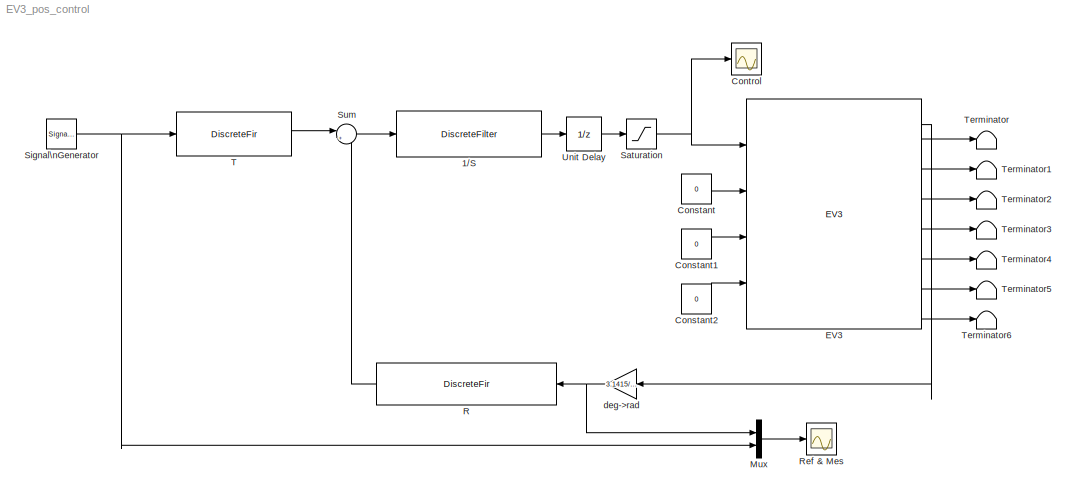
MODEL EV3_pos_control
KIND model
CONFIG InitFcn = nxt_rst
BLOCK [DiscreteFilter] 1//S
  Denominator = S
  InputPortMap = u0
  Ports = [1, 1]
  SID = 1
  SampleTime = Te
BLOCK [Constant] Constant
  SID = 18
  SampleTime = 0.01
  Value = 0
BLOCK [Constant] Constant1
  SID = 19
  SampleTime = 0.01
  Value = 0
BLOCK [Constant] Constant2
  SID = 20
  SampleTime = 0.01
  Value = 0
BLOCK [Scope] Control
  Floating = off
  NumInputPorts = 1
  Ports = [1]
  SID = 25
  ScopeSpecificationString = Simulink.scopes.TimeScopeBlockCfg('CurrentConfiguration', extmgr.ConfigurationSet(extmgr.Configuration('Core','General UI',true),extmgr.Configuration('Core','Source UI',true),extmgr.Configuration('Sources','WiredSimulink',true,'DataLoggingVariableName','ScopeData1','DataLoggingSaveFormat','StructureWithTime','DataLoggingLimitDataPoints',true,'DataLoggingDecimation','1','DataLoggingDecimateData',tr...<+1680ch>
BLOCK [Reference] EV3  REF=rpi_blkst/EV3  (lib defined in mdl_5f9edbe601a8, slx_830431f926a7)
  Ports = [4, 8]
  SID = 27
  SourceBlock = rpi_blkst/EV3
  SourceProductName = RPI Blockset
  SourceType = LEGO EV3
  rpi_mask_Ts = Te
BLOCK [Mux] Mux
  DisplayOption = bar
  Inputs = 2
  Ports = [2, 1]
  SID = 22
BLOCK [DiscreteFir] R
  AccumDataTypeStr = Inherit: Same as product output
  Coefficients = adjustCoefficients(R)
  InputPortMap = u0
  OutputPortMap = o0
  Ports = [1, 1]
  SID = 2
  SampleTime = Te
BLOCK [Scope] Ref & Mes
  Floating = off
  NumInputPorts = 1
  Ports = [1]
  SID = 24
  ScopeSpecificationString = Simulink.scopes.TimeScopeBlockCfg('CurrentConfiguration', extmgr.ConfigurationSet(extmgr.Configuration('Core','General UI',true),extmgr.Configuration('Core','Source UI',true),extmgr.Configuration('Sources','WiredSimulink',true,'DataLoggingSaveFormat','StructureWithTime','DataLoggingLimitDataPoints',true,'DataLoggingDecimation','1','DataLoggingDecimateData',true),extmgr.Configuration('Visuals','Tim...<+1635ch>
BLOCK [Saturate] Saturation
  InputPortMap = u0
  LowerLimit = -100
  Ports = [1, 1]
  SID = 3
  SampleTime = Te
  UpperLimit = 100
BLOCK [SignalGenerator] Signal\nGenerator
  Amplitude = 0
  Frequency = 0.5
  Ports = [0, 1]
  SID = 8
BLOCK [Sum] Sum
  IconShape = round
  InputSameDT = off
  Inputs = |+-
  OutDataTypeStr = Inherit: Inherit via internal rule
  Ports = [2, 1]
  SID = 4
  SaturateOnIntegerOverflow = off
BLOCK [DiscreteFir] T
  AccumDataTypeStr = Inherit: Same as product output
  Coefficients = adjustCoefficients(T)
  InputPortMap = u0
  OutputPortMap = o0
  Ports = [1, 1]
  SID = 5
  SampleTime = Te
BLOCK [Terminator] Terminator
  SID = 10
BLOCK [Terminator] Terminator1
  SID = 11
BLOCK [Terminator] Terminator2
  SID = 13
BLOCK [Terminator] Terminator3
  SID = 14
BLOCK [Terminator] Terminator4
  SID = 15
BLOCK [Terminator] Terminator5
  SID = 16
BLOCK [Terminator] Terminator6
  SID = 17
BLOCK [UnitDelay] Unit Delay
  InputProcessing = Elements as channels (sample based)
  SID = 26
  SampleTime = Te
BLOCK [Gain] deg->rad
  Gain = 3.1415/180
  OutDataTypeStr = Inherit: Inherit via internal rule
  ParamDataTypeStr = Inherit: Inherit via internal rule
  SID = 6
  SampleTime = Te
  SaturateOnIntegerOverflow = off
LINE 1//S:1 -> Unit Delay:1
LINE Constant1:1 -> EV3:3
LINE Constant2:1 -> EV3:4
LINE Constant:1 -> EV3:2
LINE EV3:1 -> deg->rad:1
LINE EV3:2 -> Terminator:1
LINE EV3:3 -> Terminator1:1
LINE EV3:4 -> Terminator2:1
LINE EV3:5 -> Terminator3:1
LINE EV3:6 -> Terminator4:1
LINE EV3:7 -> Terminator5:1
LINE EV3:8 -> Terminator6:1
LINE Mux:1 -> Ref & Mes:1
LINE R:1 -> Sum:2
NET Saturation:1 -> Control:1, EV3:1
NET Signal\nGenerator:1 -> Mux:2, T:1
LINE Sum:1 -> 1//S:1
LINE T:1 -> Sum:1
LINE Unit Delay:1 -> Saturation:1
NET deg->rad:1 -> Mux:1, R:1
note: NET lines group one-source signal fan-out (src -> all destinations, sorted); 1:1 wires keep LINE
